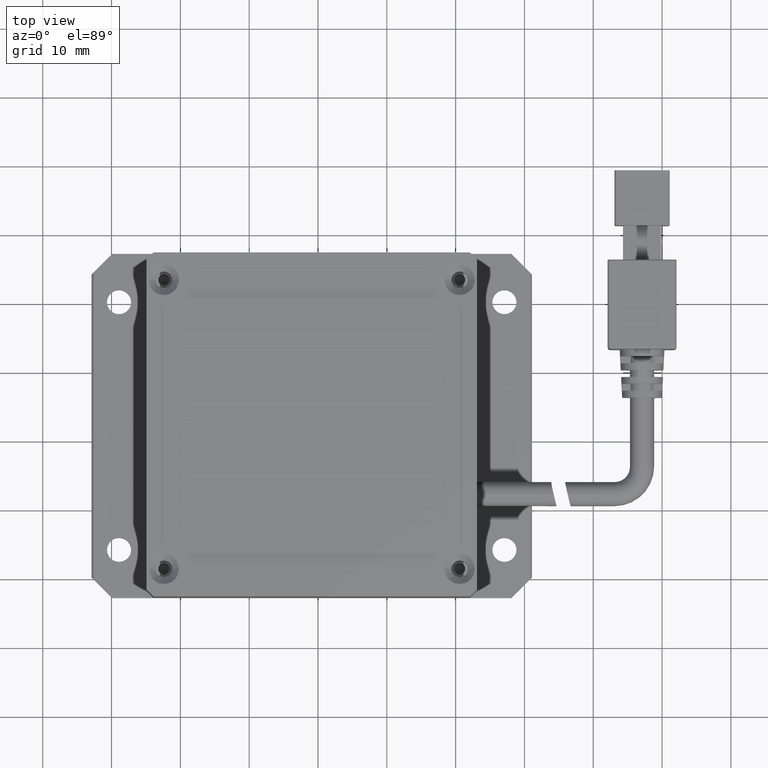
[diagram: clean part render]
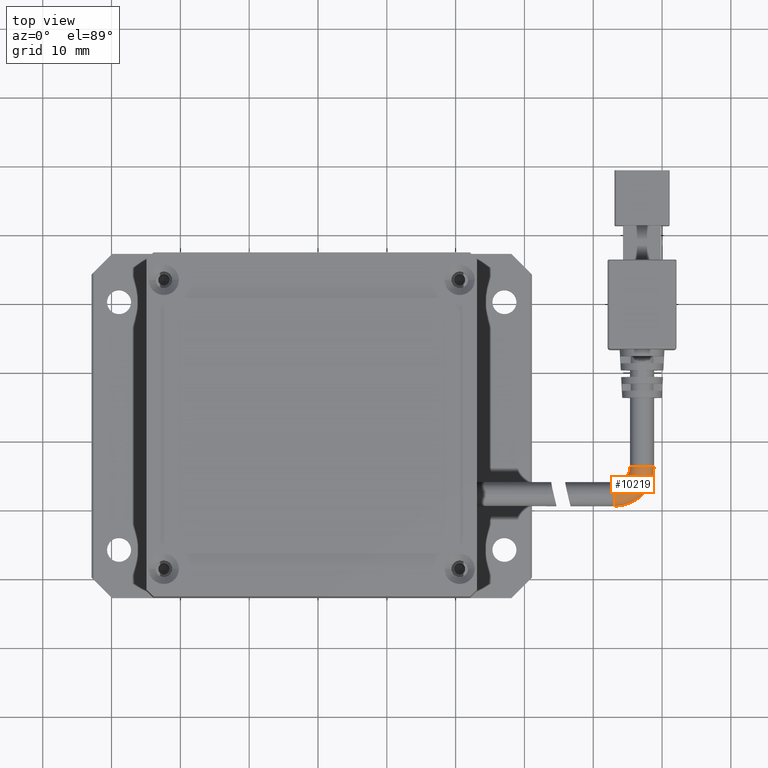
[diagram: same view with one face highlighted and labeled with its STEP entity id]
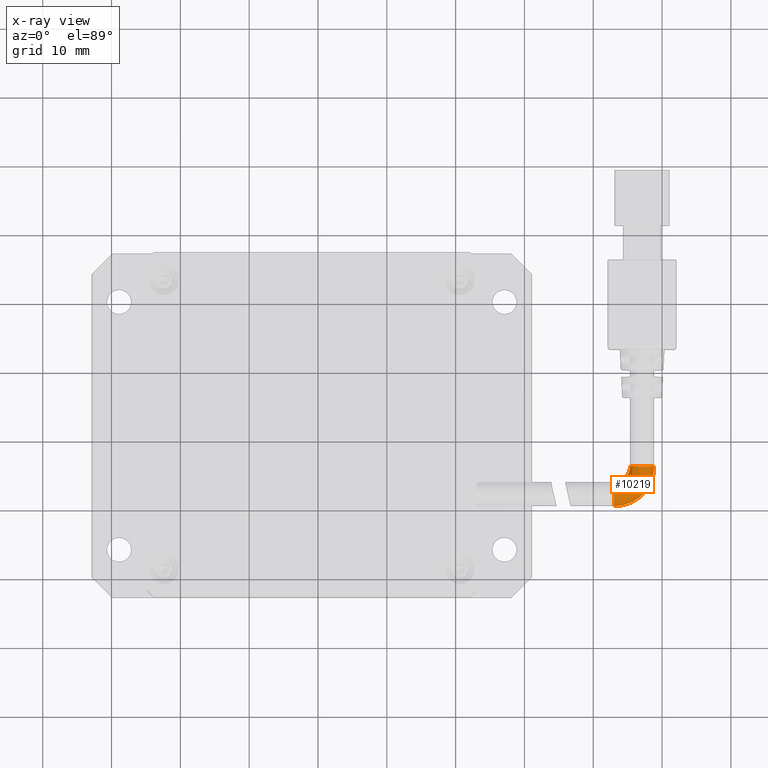
[diagram: x-ray of the same camera — body ghosted, the highlighted face saturated]
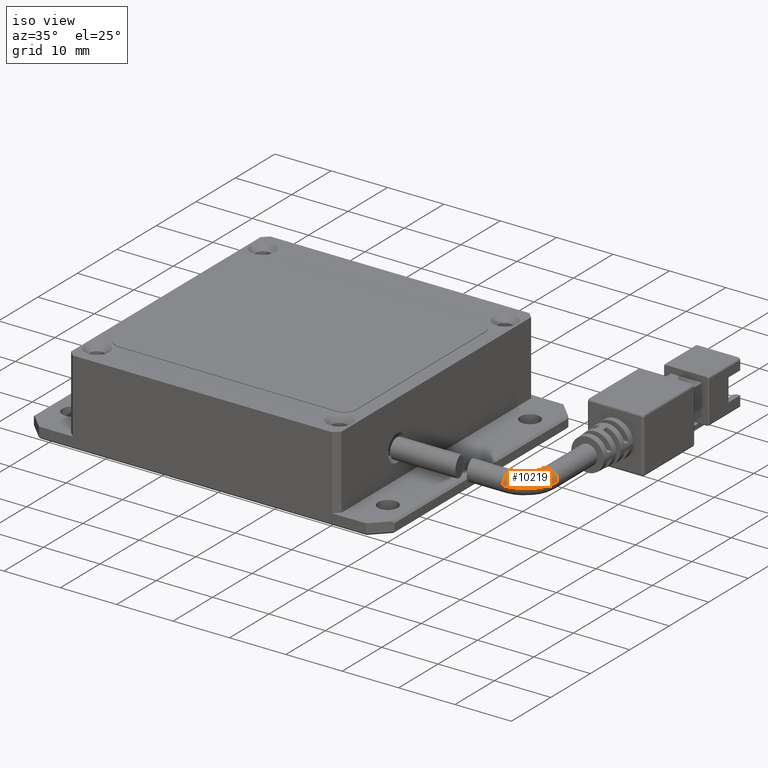
[diagram: same view with one face highlighted and labeled with its STEP entity id]
A machine part, top view. The second image highlights one B-rep face of the part: STEP entity #10219.
The next image is the same camera in x-ray: the body ghosted, the highlighted face saturated — about 0% of this face is hidden behind the body in this view.
A second angle (iso view) of the same face is appended — the face is thin or edge-on in the first view.
In plain terms, the highlighted face is a freeform B-spline surface patch.
Its self-contained STEP definition (entity closure, byte-faithful):
#560 = VERTEX_POINT ( 'NONE', #10461 ) ;
#919 = CARTESIAN_POINT ( 'NONE',  ( 43.09316533027873700, -5.959049255440968200, 4.999999999983692200 ) ) ;
#1159 = DIRECTION ( 'NONE',  ( -2.588449845256445000E-031, -2.672764710092196000E-049, -1.000000000000000000 ) ) ;
#1196 = CARTESIAN_POINT ( 'NONE',  ( 48.84316533027873700, -7.077321271795669900, 4.999999999983690400 ) ) ;
#1557 = CARTESIAN_POINT ( 'NONE',  ( 43.09316533027873000, -5.959049255440961100, 4.999999999983692200 ) ) ;
#2140 = CARTESIAN_POINT ( 'NONE',  ( 43.09316533027873700, -9.459049255440968200, 4.999999999983692200 ) ) ;
#2202 = VERTEX_POINT ( 'NONE', #16322 ) ;
#2329 = CARTESIAN_POINT ( 'NONE',  ( 43.09316533027873700, -7.709049255440968200, 4.999999999983692200 ) ) ;
#2491 = DIRECTION ( 'NONE',  ( 1.000000000000000000, 1.836970198721029700E-016, -2.588449845256445000E-031 ) ) ;
#2812 = ORIENTED_EDGE ( 'NONE', *, *, #4265, .F. ) ;
#3455 = CARTESIAN_POINT ( 'NONE',  ( 47.09316533027874400, -3.709049255440967800, 4.999999999983692200 ) ) ;
#3596 = VERTEX_POINT ( 'NONE', #2140 ) ;
#3831 = DIRECTION ( 'NONE',  ( 1.000000000000000000, 1.836970198721029700E-016, -2.588449845256445000E-031 ) ) ;
#4055 = DIRECTION ( 'NONE',  ( -1.000000000000000000, 0.0000000000000000000, 0.0000000000000000000 ) ) ;
#4265 = EDGE_CURVE ( 'NONE', #2202, #13726, #18515, .T. ) ;
#4612 = AXIS2_PLACEMENT_3D ( 'NONE', #2329, #3831, #16216 ) ;
#4647 = CARTESIAN_POINT ( 'NONE',  ( 45.34316533027873000, -3.709049255440967300, 4.999999999983692200 ) ) ;
#4701 = EDGE_CURVE ( 'NONE', #13726, #3596, #13034, .T. ) ;
#4716 = CARTESIAN_POINT ( 'NONE',  ( 48.84316533027873700, -3.709049255440967300, 8.499999999983691300 ) ) ;
#4795 = EDGE_LOOP ( 'NONE', ( #2812, #10047, #7139, #16831, #8779 ) ) ;
#5343 = CIRCLE ( 'NONE', #15549, 2.249999999999995100 ) ;
#5424 =( BOUNDED_SURFACE ( )  B_SPLINE_SURFACE ( 3, 3, ( 
 ( #19861, #1196, #9283, #14172 ),
 ( #4716, #6224, #15783, #6291 ),
 ( #20494, #17305, #9415, #12607 ),
 ( #4647, #15718, #7844, #1557 ) ),
 .UNSPECIFIED., .F., .F., .F. ) 
 B_SPLINE_SURFACE_WITH_KNOTS ( ( 4, 4 ),
 ( 4, 4 ),
 ( 0.0000000000000000000, 1.000000000000000000 ),
 ( 0.0000000000000000000, 1.000000000000000000 ),
 .UNSPECIFIED. ) 
 GEOMETRIC_REPRESENTATION_ITEM ( )  RATIONAL_B_SPLINE_SURFACE ( (
 ( 1.000000000000000000, 0.8047378541243649400, 0.8047378541243649400, 1.000000000000000000),
 ( 0.3333333333333333700, 0.2682459513747883500, 0.2682459513747883500, 0.3333333333333333700),
 ( 0.3333333333333333700, 0.2682459513747883500, 0.2682459513747883500, 0.3333333333333333700),
 ( 1.000000000000000000, 0.8047378541243649400, 0.8047378541243649400, 1.000000000000000000) ) ) 
 REPRESENTATION_ITEM ( '' )  SURFACE ( )  );
#6224 = CARTESIAN_POINT ( 'NONE',  ( 48.84316533027873700, -7.077321271795670800, 8.499999999983691300 ) ) ;
#6291 = CARTESIAN_POINT ( 'NONE',  ( 43.09316533027873700, -9.459049255440964600, 8.499999999983691300 ) ) ;
#7050 = CIRCLE ( 'NONE', #4612, 1.749999999999999800 ) ;
#7139 = ORIENTED_EDGE ( 'NONE', *, *, #10373, .T. ) ;
#7178 = CARTESIAN_POINT ( 'NONE',  ( 43.09316533027873700, -7.709049255440968200, 4.999999999983692200 ) ) ;
#7631 = FACE_OUTER_BOUND ( 'NONE', #4795, .T. ) ;
#7844 = CARTESIAN_POINT ( 'NONE',  ( 44.41118481493926100, -5.959049255440966400, 4.999999999983690400 ) ) ;
#8004 = EDGE_CURVE ( 'NONE', #560, #3596, #7050, .T. ) ;
#8777 = DIRECTION ( 'NONE',  ( 0.0000000000000000000, -1.000000000000000000, 0.0000000000000000000 ) ) ;
#8779 = ORIENTED_EDGE ( 'NONE', *, *, #4701, .F. ) ;
#8933 = VERTEX_POINT ( 'NONE', #919 ) ;
#9111 = DIRECTION ( 'NONE',  ( -1.000000000000000000, 0.0000000000000000000, 0.0000000000000000000 ) ) ;
#9283 = CARTESIAN_POINT ( 'NONE',  ( 46.46143734663343100, -9.459049255440968200, 4.999999999983690400 ) ) ;
#9415 = CARTESIAN_POINT ( 'NONE',  ( 44.41118481493925400, -5.959049255440965500, 8.499999999983691300 ) ) ;
#10047 = ORIENTED_EDGE ( 'NONE', *, *, #15367, .T. ) ;
#10219 = ADVANCED_FACE ( 'NONE', ( #7631 ), #5424, .T. ) ;
#10267 = AXIS2_PLACEMENT_3D ( 'NONE', #7178, #2491, #8777 ) ;
#10373 = EDGE_CURVE ( 'NONE', #8933, #560, #16533, .T. ) ;
#10461 = CARTESIAN_POINT ( 'NONE',  ( 43.09316533027873700, -7.709049255440968200, 6.749999999983693000 ) ) ;
#12607 = CARTESIAN_POINT ( 'NONE',  ( 43.09316533027873700, -5.959049255440961100, 8.499999999983691300 ) ) ;
#13034 = CIRCLE ( 'NONE', #15235, 5.749999999999998200 ) ;
#13726 = VERTEX_POINT ( 'NONE', #15077 ) ;
#14070 = CARTESIAN_POINT ( 'NONE',  ( 43.09316533027873700, -3.709049255440967800, 4.999999999983692200 ) ) ;
#14172 = CARTESIAN_POINT ( 'NONE',  ( 43.09316533027873000, -9.459049255440964600, 4.999999999983692200 ) ) ;
#15077 = CARTESIAN_POINT ( 'NONE',  ( 48.84316533027874400, -3.709049255440967800, 4.999999999983692200 ) ) ;
#15235 = AXIS2_PLACEMENT_3D ( 'NONE', #14070, #1159, #9111 ) ;
#15367 = EDGE_CURVE ( 'NONE', #2202, #8933, #5343, .T. ) ;
#15549 = AXIS2_PLACEMENT_3D ( 'NONE', #19822, #19691, #4055 ) ;
#15718 = CARTESIAN_POINT ( 'NONE',  ( 45.34316533027871500, -5.027068740101500000, 4.999999999983690400 ) ) ;
#15783 = CARTESIAN_POINT ( 'NONE',  ( 46.46143734663343100, -9.459049255440968200, 8.499999999983691300 ) ) ;
#16122 = DIRECTION ( 'NONE',  ( 1.000000000000000000, 0.0000000000000000000, 0.0000000000000000000 ) ) ;
#16216 = DIRECTION ( 'NONE',  ( 0.0000000000000000000, -1.000000000000000000, 0.0000000000000000000 ) ) ;
#16322 = CARTESIAN_POINT ( 'NONE',  ( 45.34316533027873700, -3.709049255440967800, 4.999999999983692200 ) ) ;
#16533 = CIRCLE ( 'NONE', #10267, 1.749999999999999800 ) ;
#16831 = ORIENTED_EDGE ( 'NONE', *, *, #8004, .T. ) ;
#17305 = CARTESIAN_POINT ( 'NONE',  ( 45.34316533027873700, -5.027068740101500000, 8.499999999983691300 ) ) ;
#17837 = DIRECTION ( 'NONE',  ( -3.081487911019577400E-033, 1.000000000000000000, -2.672764710092188000E-049 ) ) ;
#18515 = CIRCLE ( 'NONE', #18534, 1.750000000000001600 ) ;
#18534 = AXIS2_PLACEMENT_3D ( 'NONE', #3455, #17837, #16122 ) ;
#19691 = DIRECTION ( 'NONE',  ( -2.588449845256445000E-031, -2.672764710092196000E-049, -1.000000000000000000 ) ) ;
#19822 = CARTESIAN_POINT ( 'NONE',  ( 43.09316533027873700, -3.709049255440967800, 4.999999999983692200 ) ) ;
#19861 = CARTESIAN_POINT ( 'NONE',  ( 48.84316533027873700, -3.709049255440967300, 4.999999999983692200 ) ) ;
#20494 = CARTESIAN_POINT ( 'NONE',  ( 45.34316533027873700, -3.709049255440967300, 8.499999999983691300 ) ) ;